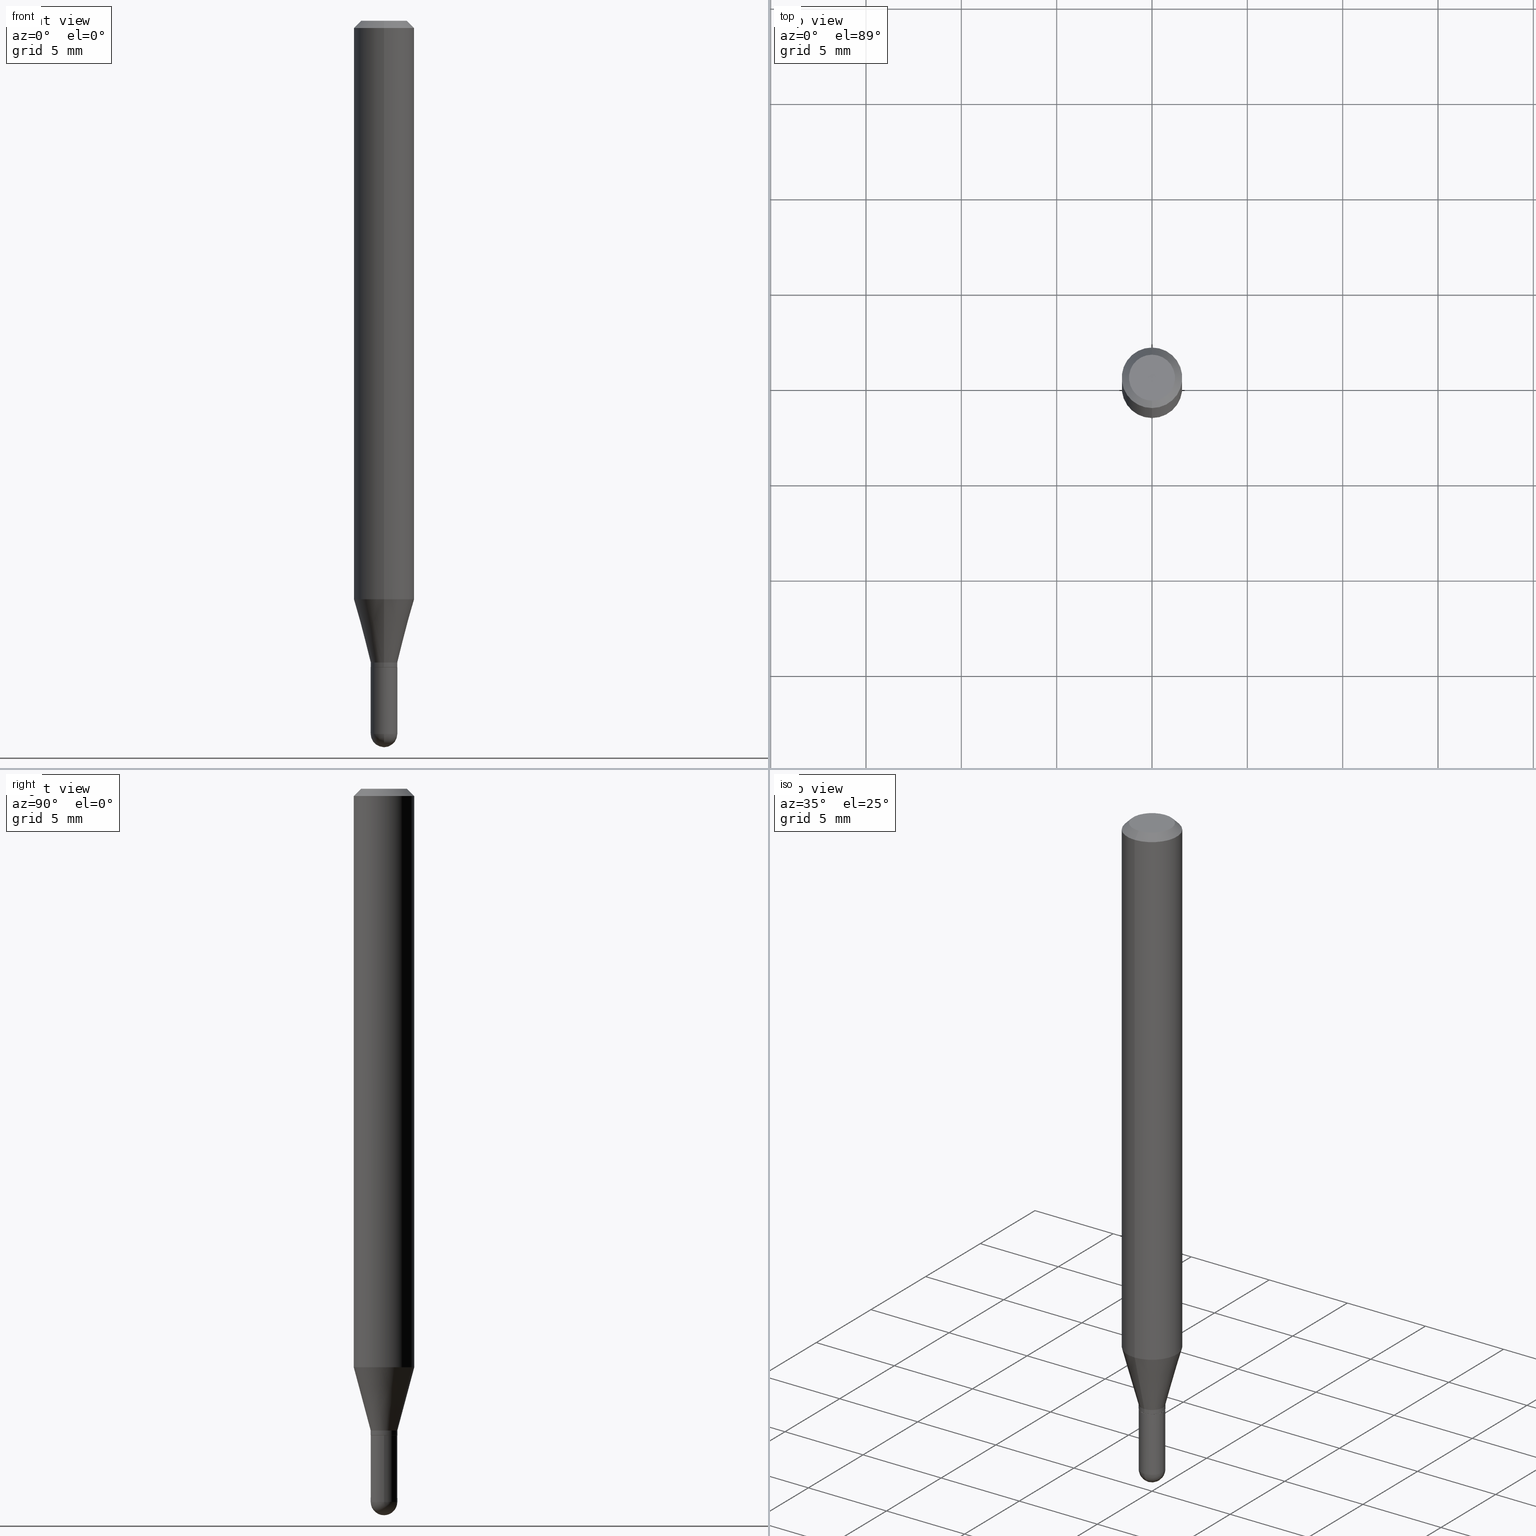
[diagram: canonical four-view strip — front | top / right | iso, engineering-drawing reading convention]
A machine part, canonical four-view strip (front | top / right | iso — engineering-drawing reading convention). The complete STEP part file that produces these views, byte-faithful:
ISO-10303-21;
HEADER;
FILE_DESCRIPTION (( 'STEP AP203' ),
    '1' );
FILE_NAME ('02620.STEP',
    '2024-03-07T20:49:45',
    ( '' ),
    ( '' ),
    'SwSTEP 2.0',
    'SolidWorks 2023',
    '' );
FILE_SCHEMA (( 'CONFIG_CONTROL_DESIGN' ));
ENDSEC;

DATA;
#1 = ADVANCED_FACE ( 'NONE', ( #332 ), #294, .T. ) ;
#2 = ORIENTED_EDGE ( 'NONE', *, *, #459, .T. ) ;
#3 = PERSON_AND_ORGANIZATION_ROLE ( 'creator' ) ;
#4 = DIRECTION ( 'NONE',  ( 6.982962677686265922E-15, 1.000000000000000000, -3.491477318471451219E-15 ) ) ;
#5 = AXIS2_PLACEMENT_3D ( 'NONE', #184, #151, #292 ) ;
#6 = ORIENTED_EDGE ( 'NONE', *, *, #380, .F. ) ;
#7 = COORDINATED_UNIVERSAL_TIME_OFFSET ( 5, 0, .BEHIND. ) ;
#8 = FACE_OUTER_BOUND ( 'NONE', #358, .T. ) ;
#9 = ORIENTED_EDGE ( 'NONE', *, *, #59, .T. ) ;
#10 = ADVANCED_FACE ( 'NONE', ( #109 ), #32, .T. ) ;
#11 = EDGE_CURVE ( 'NONE', #209, #200, #354, .T. ) ;
#12 = DIRECTION ( 'NONE',  ( -2.445471613595686060E-29, 3.491477318471450825E-15, 1.000000000000000000 ) ) ;
#13 = VERTEX_POINT ( 'NONE', #336 ) ;
#14 = CARTESIAN_POINT ( 'NONE',  ( 3.240249888014285312E-29, -4.626207446974673812E-15, -1.325000000000000400 ) ) ;
#15 = CC_DESIGN_PERSON_AND_ORGANIZATION_ASSIGNMENT ( #38, #201, ( #30 ) ) ;
#16 = ORIENTED_EDGE ( 'NONE', *, *, #431, .T. ) ;
#17 = VECTOR ( 'NONE', #160, 39.37007874015748143 ) ;
#18 = CARTESIAN_POINT ( 'NONE',  ( 0.000000000000000000, 0.000000000000000000, 0.000000000000000000 ) ) ;
#19 = CARTESIAN_POINT ( 'NONE',  ( 0.000000000000000000, 0.000000000000000000, 0.000000000000000000 ) ) ;
#20 = FACE_OUTER_BOUND ( 'NONE', #72, .T. ) ;
#21 = CIRCLE ( 'NONE', #27, 0.02750000000000000708 ) ;
#22 = CYLINDRICAL_SURFACE ( 'NONE', #316, 0.06250000000000000000 ) ;
#23 = PLANE ( 'NONE',  #54 ) ;
#24 = DIRECTION ( 'NONE',  ( -2.445471613595686060E-29, 3.491477318471450825E-15, 1.000000000000000000 ) ) ;
#25 = VERTEX_POINT ( 'NONE', #369 ) ;
#26 = DIRECTION ( 'NONE',  ( -1.000000000000000000, 6.982962677686265922E-15, -4.876176775795935793E-29 ) ) ;
#27 = AXIS2_PLACEMENT_3D ( 'NONE', #163, #389, #238 ) ;
#28 = EDGE_LOOP ( 'NONE', ( #428, #50, #276, #351 ) ) ;
#29 = CIRCLE ( 'NONE', #53, 0.02750000000000010075 ) ;
#30 = PRODUCT_DEFINITION_FORMATION_WITH_SPECIFIED_SOURCE ( 'ANY', '', #448, .NOT_KNOWN. ) ;
#31 = DIRECTION ( 'NONE',  ( 1.839019923739605048E-15, 0.2588190451025256245, 0.9659258262890669799 ) ) ;
#32 = SPHERICAL_SURFACE ( 'NONE', #382, 0.02750000000000010075 ) ;
#33 = EDGE_CURVE ( 'NONE', #454, #197, #267, .T. ) ;
#34 = DIRECTION ( 'NONE',  ( -2.445468806185136597E-29, 3.491481338843145583E-15, 1.000000000000000000 ) ) ;
#35 = APPROVAL_DATE_TIME ( #158, #230 ) ;
#36 = ORIENTED_EDGE ( 'NONE', *, *, #417, .F. ) ;
#37 = AXIS2_PLACEMENT_3D ( 'NONE', #253, #321, #98 ) ;
#38 = PERSON_AND_ORGANIZATION ( #365, #323 ) ;
#39 = CARTESIAN_POINT ( 'NONE',  ( 0.000000000000000000, 0.000000000000000000, 0.000000000000000000 ) ) ;
#40 = PERSON_AND_ORGANIZATION ( #365, #323 ) ;
#41 = LINE ( 'NONE', #120, #115 ) ;
#42 = ORIENTED_EDGE ( 'NONE', *, *, #410, .T. ) ;
#43 = APPLICATION_PROTOCOL_DEFINITION ( 'international standard', 'config_control_design', 1994, #359 ) ;
#44 = CARTESIAN_POINT ( 'NONE',  ( 3.316907271900976096E-16, 0.04749999999999999362, -3.299187419673015324E-16 ) ) ;
#45 = AXIS2_PLACEMENT_3D ( 'NONE', #465, #85, #206 ) ;
#46 = ORIENTED_EDGE ( 'NONE', *, *, #76, .T. ) ;
#47 = CIRCLE ( 'NONE', #279, 0.02750000000000000708 ) ;
#48 = EDGE_CURVE ( 'NONE', #463, #242, #21, .T. ) ;
#49 = LINE ( 'NONE', #51, #285 ) ;
#50 = ORIENTED_EDGE ( 'NONE', *, *, #60, .T. ) ;
#51 = CARTESIAN_POINT ( 'NONE',  ( -1.920314736363393602E-16, -0.02750000000000454858, -1.325000000000000400 ) ) ;
#52 = CARTESIAN_POINT ( 'NONE',  ( -1.920314736363717528E-16, -0.02749999999999992034, 9.601562625796461469E-17 ) ) ;
#53 = AXIS2_PLACEMENT_3D ( 'NONE', #395, #88, #269 ) ;
#54 = AXIS2_PLACEMENT_3D ( 'NONE', #226, #183, #26 ) ;
#55 = DIRECTION ( 'NONE',  ( 4.937700262164548042E-15, 0.7071067811865451302, -0.7071067811865499042 ) ) ;
#56 = ADVANCED_FACE ( 'NONE', ( #8 ), #329, .T. ) ;
#57 = CARTESIAN_POINT ( 'NONE',  ( -1.885399922974965256E-16, -0.02700000000000466263, -1.335000000000000187 ) ) ;
#58 = DIRECTION ( 'NONE',  ( -2.445468806185136597E-29, 3.491481338843145583E-15, 1.000000000000000000 ) ) ;
#59 = EDGE_CURVE ( 'NONE', #313, #203, #90, .T. ) ;
#60 = EDGE_CURVE ( 'NONE', #127, #209, #29, .T. ) ;
#61 = ADVANCED_FACE ( 'NONE', ( #272 ), #301, .T. ) ;
#62 = AXIS2_PLACEMENT_3D ( 'NONE', #275, #385, #168 ) ;
#63 = DIRECTION ( 'NONE',  ( -6.982962677686265922E-15, -1.000000000000000000, 0.000000000000000000 ) ) ;
#64 = CC_DESIGN_APPROVAL ( #483, ( #415 ) ) ;
#65 = CC_DESIGN_DATE_AND_TIME_ASSIGNMENT ( #474, #233, ( #415 ) ) ;
#66 = DIRECTION ( 'NONE',  ( 1.000000000000000000, -6.982962677686265922E-15, 4.883557194083112901E-29 ) ) ;
#67 = DIRECTION ( 'NONE',  ( -2.445468806185136597E-29, 3.491481338843145583E-15, 1.000000000000000000 ) ) ;
#68 = EDGE_LOOP ( 'NONE', ( #393, #133, #263, #239 ) ) ;
#69 = DIRECTION ( 'NONE',  ( -2.445471613595686060E-29, 3.491477318471450825E-15, 1.000000000000000000 ) ) ;
#70 = ORIENTED_EDGE ( 'NONE', *, *, #397, .T. ) ;
#71 = DIRECTION ( 'NONE',  ( 1.000000000000000000, -6.982962677686277755E-15, 0.000000000000000000 ) ) ;
#72 = EDGE_LOOP ( 'NONE', ( #456, #493, #399, #36 ) ) ;
#73 = CC_DESIGN_PERSON_AND_ORGANIZATION_ASSIGNMENT ( #420, #3, ( #170 ) ) ;
#74 = SECURITY_CLASSIFICATION_LEVEL ( 'unclassified' ) ;
#75 = ORIENTED_EDGE ( 'NONE', *, *, #397, .F. ) ;
#76 = EDGE_CURVE ( 'NONE', #454, #344, #41, .T. ) ;
#77 = CARTESIAN_POINT ( 'NONE',  ( 0.000000000000000000, 0.000000000000000000, 0.000000000000000000 ) ) ;
#78 = CLOSED_SHELL ( 'NONE', ( #61, #1, #477, #10, #349 ) ) ;
#79 = AXIS2_PLACEMENT_3D ( 'NONE', #443, #355, #246 ) ;
#80 = LOCAL_TIME ( 15, 49, 45.00000000000000000, #81 ) ;
#81 = COORDINATED_UNIVERSAL_TIME_OFFSET ( 5, 0, .BEHIND. ) ;
#82 = DIRECTION ( 'NONE',  ( -2.445471613595686060E-29, 3.491477318471450825E-15, 1.000000000000000000 ) ) ;
#83 = EDGE_LOOP ( 'NONE', ( #94, #154, #86, #176 ) ) ;
#84 = DIRECTION ( 'NONE',  ( 1.000000000000000000, 0.000000000000000000, 0.000000000000000000 ) ) ;
#85 = DIRECTION ( 'NONE',  ( 2.445471613595686060E-29, -3.491477318471450825E-15, -1.000000000000000000 ) ) ;
#86 = ORIENTED_EDGE ( 'NONE', *, *, #479, .F. ) ;
#87 = DATE_TIME_ROLE ( 'creation_date' ) ;
#88 = DIRECTION ( 'NONE',  ( -1.000000000000000000, 6.982962677686265922E-15, -4.883557194083112340E-29 ) ) ;
#89 = EDGE_CURVE ( 'NONE', #197, #454, #156, .T. ) ;
#90 = CIRCLE ( 'NONE', #507, 0.04749999999999999362 ) ;
#91 = ORIENTED_EDGE ( 'NONE', *, *, #48, .T. ) ;
#92 =( GEOMETRIC_REPRESENTATION_CONTEXT ( 3 ) GLOBAL_UNCERTAINTY_ASSIGNED_CONTEXT ( ( #400 ) ) GLOBAL_UNIT_ASSIGNED_CONTEXT ( ( #260, #499, #455 ) ) REPRESENTATION_CONTEXT ( 'NONE', 'WORKASPACE' ) );
#93 = DIRECTION ( 'NONE',  ( 5.024295867788190974E-15, 0.7071067811865681119, 0.7071067811865270336 ) ) ;
#94 = ORIENTED_EDGE ( 'NONE', *, *, #60, .F. ) ;
#95 = FACE_OUTER_BOUND ( 'NONE', #506, .T. ) ;
#96 = VERTEX_POINT ( 'NONE', #478 ) ;
#97 = EDGE_CURVE ( 'NONE', #371, #273, #49, .T. ) ;
#98 = DIRECTION ( 'NONE',  ( -6.982962677686265133E-15, -1.000000000000000000, 0.000000000000000000 ) ) ;
#99 = CONICAL_SURFACE ( 'NONE', #37, 0.02699999999999999969, 0.7853981633974739252 ) ;
#100 = CIRCLE ( 'NONE', #317, 0.02699999999999999969 ) ;
#101 = LOCAL_TIME ( 15, 49, 45.00000000000000000, #300 ) ;
#102 = DIRECTION ( 'NONE',  ( -4.851104656540964275E-15, -0.7071067811865500152, -0.7071067811865450192 ) ) ;
#103 = CARTESIAN_POINT ( 'NONE',  ( -0.02750000000000000708, 1.953992523340276014E-16, -1.352707149820099356E-30 ) ) ;
#104 = ADVANCED_FACE ( 'NONE', ( #475 ), #265, .T. ) ;
#105 = DIRECTION ( 'NONE',  ( -2.445471613595686060E-29, 3.491477318471450825E-15, 1.000000000000000000 ) ) ;
#106 = CLOSED_SHELL ( 'NONE', ( #130, #212, #174, #104, #357, #186, #333, #362, #112, #491, #56, #341 ) ) ;
#107 = AXIS2_PLACEMENT_3D ( 'NONE', #191, #69, #63 ) ;
#108 = CARTESIAN_POINT ( 'NONE',  ( 3.264704604150241307E-29, -4.661122220159386873E-15, -1.335000000000000187 ) ) ;
#109 = FACE_OUTER_BOUND ( 'NONE', #28, .T. ) ;
#110 = DIRECTION ( 'NONE',  ( -2.445471613595686060E-29, 3.491477318471450825E-15, 1.000000000000000000 ) ) ;
#111 = VERTEX_POINT ( 'NONE', #131 ) ;
#112 = ADVANCED_FACE ( 'NONE', ( #243 ), #202, .F. ) ;
#113 = ORIENTED_EDGE ( 'NONE', *, *, #97, .F. ) ;
#114 = CARTESIAN_POINT ( 'NONE',  ( 3.264704604150241307E-29, -4.661122220159386873E-15, -1.335000000000000187 ) ) ;
#115 = VECTOR ( 'NONE', #234, 39.37007874015748143 ) ;
#116 = DIRECTION ( 'NONE',  ( 1.000000000000000000, -6.982962677686265922E-15, 4.883557194083112901E-29 ) ) ;
#117 = LOCAL_TIME ( 15, 49, 45.00000000000000000, #386 ) ;
#118 = ORIENTED_EDGE ( 'NONE', *, *, #440, .F. ) ;
#119 = DATE_AND_TIME ( #426, #117 ) ;
#120 = CARTESIAN_POINT ( 'NONE',  ( 1.953992523340269605E-16, 0.02749999999999992034, -9.601562625796461469E-17 ) ) ;
#121 = CALENDAR_DATE ( 2024, 7, 3 ) ;
#122 = CARTESIAN_POINT ( 'NONE',  ( 3.598601109812370247E-29, -5.144574050144187163E-15, -1.472500000000000142 ) ) ;
#123 = AXIS2_PLACEMENT_3D ( 'NONE', #44, #387, #4 ) ;
#124 = ORIENTED_EDGE ( 'NONE', *, *, #33, .F. ) ;
#125 = MECHANICAL_CONTEXT ( 'NONE', #152, 'mechanical' ) ;
#126 = LINE ( 'NONE', #438, #255 ) ;
#127 = VERTEX_POINT ( 'NONE', #308 ) ;
#128 = APPLICATION_PROTOCOL_DEFINITION ( 'international standard', 'config_control_design', 1994, #152 ) ;
#129 = DIRECTION ( 'NONE',  ( -6.982962677686265922E-15, -1.000000000000000000, 3.491477318471450825E-15 ) ) ;
#130 = ADVANCED_FACE ( 'NONE', ( #210 ), #350, .T. ) ;
#131 = CARTESIAN_POINT ( 'NONE',  ( -0.02750000000000000014, -4.705767677067038393E-15, -1.335000000000000187 ) ) ;
#132 = CIRCLE ( 'NONE', #79, 0.02750000000000000014 ) ;
#133 = ORIENTED_EDGE ( 'NONE', *, *, #380, .T. ) ;
#134 = CIRCLE ( 'NONE', #497, 0.02699999999999999969 ) ;
#135 = CARTESIAN_POINT ( 'NONE',  ( -3.773273898774340269E-16, -0.04749999999999999362, -1.623019660524213164E-16 ) ) ;
#136 = ORIENTED_EDGE ( 'NONE', *, *, #440, .T. ) ;
#137 = EDGE_CURVE ( 'NONE', #200, #214, #512, .T. ) ;
#138 = DIRECTION ( 'NONE',  ( 2.445471613595686060E-29, -3.491477318471450825E-15, -1.000000000000000000 ) ) ;
#139 = DIRECTION ( 'NONE',  ( -2.445471613595686060E-29, 3.491477318471450825E-15, 1.000000000000000000 ) ) ;
#140 = EDGE_LOOP ( 'NONE', ( #9, #2 ) ) ;
#141 = EDGE_CURVE ( 'NONE', #484, #96, #340, .T. ) ;
#142 = CARTESIAN_POINT ( 'NONE',  ( -0.02750000000000000708, -4.705767677067038393E-15, -1.472500000000000142 ) ) ;
#143 = CYLINDRICAL_SURFACE ( 'NONE', #496, 0.02750000000000000708 ) ;
#144 = CARTESIAN_POINT ( 'NONE',  ( 3.264704604150241307E-29, -4.661122220159386873E-15, -1.335000000000000187 ) ) ;
#145 = EDGE_LOOP ( 'NONE', ( #257, #296, #346, #473 ) ) ;
#146 = AXIS2_PLACEMENT_3D ( 'NONE', #122, #510, #430 ) ;
#147 = DIRECTION ( 'NONE',  ( -2.445471613595686060E-29, 3.491477318471450825E-15, 1.000000000000000000 ) ) ;
#148 = AXIS2_PLACEMENT_3D ( 'NONE', #262, #24, #490 ) ;
#149 = DIRECTION ( 'NONE',  ( -2.445471613595686060E-29, 3.491477318471450825E-15, 1.000000000000000000 ) ) ;
#150 = EDGE_CURVE ( 'NONE', #450, #454, #126, .T. ) ;
#151 = DIRECTION ( 'NONE',  ( -2.445471613595686060E-29, 3.491477318471450825E-15, 1.000000000000000000 ) ) ;
#152 = APPLICATION_CONTEXT ( 'configuration controlled 3d designs of mechanical parts and assemblies' ) ;
#153 = DIRECTION ( 'NONE',  ( -2.445471613595686060E-29, 3.491477318471450825E-15, 1.000000000000000000 ) ) ;
#154 = ORIENTED_EDGE ( 'NONE', *, *, #167, .T. ) ;
#155 = CARTESIAN_POINT ( 'NONE',  ( 1.953992523340593531E-16, 0.02749999999999529210, -1.325000000000000400 ) ) ;
#156 = CIRCLE ( 'NONE', #241, 0.02749999999999992381 ) ;
#157 = EDGE_LOOP ( 'NONE', ( #172, #46, #227, #390 ) ) ;
#158 = DATE_AND_TIME ( #121, #80 ) ;
#159 = FACE_OUTER_BOUND ( 'NONE', #68, .T. ) ;
#160 = DIRECTION ( 'NONE',  ( -2.445468806185136877E-29, 3.491481338843145188E-15, 1.000000000000000000 ) ) ;
#161 = EDGE_LOOP ( 'NONE', ( #91, #299, #259, #421, #290 ) ) ;
#162 = PERSON_AND_ORGANIZATION ( #365, #323 ) ;
#163 = CARTESIAN_POINT ( 'NONE',  ( 3.600952817107613706E-29, -5.141206271446532325E-15, -1.472500000000000142 ) ) ;
#164 = CONICAL_SURFACE ( 'NONE', #481, 0.02749999999999992034, 0.2617993877991509621 ) ;
#165 = EDGE_LOOP ( 'NONE', ( #476, #353, #376, #185, #492 ) ) ;
#166 = CALENDAR_DATE ( 2024, 7, 3 ) ;
#167 = EDGE_CURVE ( 'NONE', #127, #463, #402, .T. ) ;
#168 = DIRECTION ( 'NONE',  ( -6.982962677686265133E-15, -1.000000000000000000, 0.000000000000000000 ) ) ;
#169 = ORIENTED_EDGE ( 'NONE', *, *, #501, .T. ) ;
#170 = PRODUCT_DEFINITION ( 'UNKNOWN', '', #30, #383 ) ;
#171 = DIRECTION ( 'NONE',  ( -2.445471613595686060E-29, 3.491477318471450825E-15, 1.000000000000000000 ) ) ;
#172 = ORIENTED_EDGE ( 'NONE', *, *, #89, .T. ) ;
#173 = DIRECTION ( 'NONE',  ( -6.982962677686265922E-15, -1.000000000000000000, 4.370956789862821150E-15 ) ) ;
#174 = ADVANCED_FACE ( 'NONE', ( #159 ), #175, .T. ) ;
#175 = CONICAL_SURFACE ( 'NONE', #45, 0.06250000000000000000, 0.7853981633974483900 ) ;
#176 = ORIENTED_EDGE ( 'NONE', *, *, #11, .F. ) ;
#177 = AXIS2_PLACEMENT_3D ( 'NONE', #306, #422, #84 ) ;
#178 = CARTESIAN_POINT ( 'NONE',  ( -4.364351673553916201E-16, -0.06250000000000000000, 2.182173324044656766E-16 ) ) ;
#179 = DIRECTION ( 'NONE',  ( -2.445471613595686060E-29, 3.491477318471450825E-15, 1.000000000000000000 ) ) ;
#180 = FACE_OUTER_BOUND ( 'NONE', #500, .T. ) ;
#181 = AXIS2_PLACEMENT_3D ( 'NONE', #77, #304, #345 ) ;
#182 = LINE ( 'NONE', #178, #208 ) ;
#183 = DIRECTION ( 'NONE',  ( 2.438088387897960049E-29, -3.491481338843145188E-15, -1.000000000000000000 ) ) ;
#184 = CARTESIAN_POINT ( 'NONE',  ( 2.920818037150057655E-29, -4.170144470864333140E-15, -1.194378221735090229 ) ) ;
#185 = ORIENTED_EDGE ( 'NONE', *, *, #137, .T. ) ;
#186 = ADVANCED_FACE ( 'NONE', ( #466 ), #461, .T. ) ;
#187 = VECTOR ( 'NONE', #102, 39.37007874015748143 ) ;
#188 = CARTESIAN_POINT ( 'NONE',  ( 3.600952817107613706E-29, -5.141206271446532325E-15, -1.472500000000000142 ) ) ;
#189 = APPROVAL_PERSON_ORGANIZATION ( #266, #230, #347 ) ;
#190 = ORIENTED_EDGE ( 'NONE', *, *, #89, .F. ) ;
#191 = CARTESIAN_POINT ( 'NONE',  ( 3.240249888014285312E-29, -4.626207446974673812E-15, -1.325000000000000400 ) ) ;
#192 = EDGE_CURVE ( 'NONE', #484, #273, #219, .T. ) ;
#193 = EDGE_CURVE ( 'NONE', #197, #371, #287, .T. ) ;
#194 = DIRECTION ( 'NONE',  ( 1.000000000000000000, -6.982962677686277755E-15, 0.000000000000000000 ) ) ;
#195 = APPROVAL_ROLE ( '' ) ;
#196 = AXIS2_PLACEMENT_3D ( 'NONE', #320, #138, #283 ) ;
#197 = VERTEX_POINT ( 'NONE', #401 ) ;
#198 = APPROVAL_DATE_TIME ( #464, #483 ) ;
#199 = CARTESIAN_POINT ( 'NONE',  ( 3.263481868343443170E-29, -4.659376481500151772E-15, -1.334500000000000242 ) ) ;
#200 = VERTEX_POINT ( 'NONE', #361 ) ;
#201 = PERSON_AND_ORGANIZATION_ROLE ( 'design_supplier' ) ;
#202 = PLANE ( 'NONE',  #123 ) ;
#203 = VERTEX_POINT ( 'NONE', #135 ) ;
#204 = MANIFOLD_SOLID_BREP ( 'Body-Move/Copy2[2]', #106 ) ;
#205 = PERSON_AND_ORGANIZATION ( #365, #323 ) ;
#206 = DIRECTION ( 'NONE',  ( 6.982962677686265922E-15, 1.000000000000000000, -3.483106191921935554E-15 ) ) ;
#207 = MANIFOLD_SOLID_BREP ( 'Body-Move/Copy2[1]', #78 ) ;
#208 = VECTOR ( 'NONE', #487, 39.37007874015748143 ) ;
#209 = VERTEX_POINT ( 'NONE', #404 ) ;
#210 = FACE_OUTER_BOUND ( 'NONE', #157, .T. ) ;
#211 = EDGE_LOOP ( 'NONE', ( #318, #396 ) ) ;
#212 = ADVANCED_FACE ( 'NONE', ( #180 ), #99, .T. ) ;
#213 = CARTESIAN_POINT ( 'NONE',  ( 3.264700856257157760E-29, -4.661127587355599122E-15, -1.335000000000000187 ) ) ;
#214 = VERTEX_POINT ( 'NONE', #445 ) ;
#215 = CYLINDRICAL_SURFACE ( 'NONE', #425, 0.02749999999999992034 ) ;
#216 = DIRECTION ( 'NONE',  ( -6.982962677686265922E-15, -1.000000000000000000, 3.491477318471450825E-15 ) ) ;
#217 = FACE_OUTER_BOUND ( 'NONE', #145, .T. ) ;
#218 = CARTESIAN_POINT ( 'NONE',  ( -4.364351673553625802E-16, -0.06250000000000419109, -1.194378221735090007 ) ) ;
#219 = CIRCLE ( 'NONE', #413, 0.06250000000000000000 ) ;
#220 = AXIS2_PLACEMENT_3D ( 'NONE', #258, #416, #71 ) ;
#221 = LINE ( 'NONE', #155, #309 ) ;
#222 = EDGE_CURVE ( 'NONE', #273, #13, #182, .T. ) ;
#223 = CARTESIAN_POINT ( 'NONE',  ( 3.240249888014285312E-29, -4.626207446974673812E-15, -1.325000000000000400 ) ) ;
#224 = ORIENTED_EDGE ( 'NONE', *, *, #302, .T. ) ;
#225 = CIRCLE ( 'NONE', #107, 0.02749999999999992034 ) ;
#226 = CARTESIAN_POINT ( 'NONE',  ( 1.920314736364049589E-16, 0.02749999999999534067, -1.335000000000000187 ) ) ;
#227 = ORIENTED_EDGE ( 'NONE', *, *, #501, .F. ) ;
#228 = DIRECTION ( 'NONE',  ( -6.982962677686265922E-15, -1.000000000000000000, 0.000000000000000000 ) ) ;
#229 = CARTESIAN_POINT ( 'NONE',  ( 3.598601109812370247E-29, -5.144574050144187163E-15, -1.472500000000000142 ) ) ;
#230 = APPROVAL ( #231, 'UNSPECIFIED' ) ;
#231 = APPROVAL_STATUS ( 'not_yet_approved' ) ;
#232 = EDGE_LOOP ( 'NONE', ( #408, #305, #247, #244 ) ) ;
#233 = DATE_TIME_ROLE ( 'classification_date' ) ;
#234 = DIRECTION ( 'NONE',  ( -2.445471613595686060E-29, 3.491477318471451219E-15, 1.000000000000000000 ) ) ;
#235 = PRODUCT_RELATED_PRODUCT_CATEGORY ( 'detail', '', ( #448 ) ) ;
#236 = APPROVAL_STATUS ( 'not_yet_approved' ) ;
#237 = DIRECTION ( 'NONE',  ( -2.445471613595686060E-29, 3.491477318471450825E-15, 1.000000000000000000 ) ) ;
#238 = DIRECTION ( 'NONE',  ( 1.000000000000000000, -6.982962677686277755E-15, 0.000000000000000000 ) ) ;
#239 = ORIENTED_EDGE ( 'NONE', *, *, #302, .F. ) ;
#240 = DIRECTION ( 'NONE',  ( -2.445471613595686060E-29, 3.491477318471450825E-15, 1.000000000000000000 ) ) ;
#241 = AXIS2_PLACEMENT_3D ( 'NONE', #199, #12, #392 ) ;
#242 = VERTEX_POINT ( 'NONE', #142 ) ;
#243 = FACE_OUTER_BOUND ( 'NONE', #140, .T. ) ;
#244 = ORIENTED_EDGE ( 'NONE', *, *, #222, .F. ) ;
#245 = CC_DESIGN_PERSON_AND_ORGANIZATION_ASSIGNMENT ( #271, #429, ( #415 ) ) ;
#246 = DIRECTION ( 'NONE',  ( 1.000000000000000000, -6.982962677686279332E-15, 0.000000000000000000 ) ) ;
#247 = ORIENTED_EDGE ( 'NONE', *, *, #446, .F. ) ;
#248 = LINE ( 'NONE', #103, #364 ) ;
#249 = CIRCLE ( 'NONE', #322, 0.06250000000000000000 ) ;
#250 = LOCAL_TIME ( 15, 49, 45.00000000000000000, #342 ) ;
#251 = LINE ( 'NONE', #57, #469 ) ;
#252 = EDGE_CURVE ( 'NONE', #214, #111, #278, .T. ) ;
#253 = CARTESIAN_POINT ( 'NONE',  ( 3.264704604150241307E-29, -4.661122220159386873E-15, -1.335000000000000187 ) ) ;
#254 = DIRECTION ( 'NONE',  ( -2.445468806185136597E-29, 3.491481338843145583E-15, 1.000000000000000000 ) ) ;
#255 = VECTOR ( 'NONE', #93, 39.37007874015748143 ) ;
#256 = AXIS2_PLACEMENT_3D ( 'NONE', #504, #327, #295 ) ;
#257 = ORIENTED_EDGE ( 'NONE', *, *, #76, .F. ) ;
#258 = CARTESIAN_POINT ( 'NONE',  ( 3.600952817107613706E-29, -5.141206271446532325E-15, -1.472500000000000142 ) ) ;
#259 = ORIENTED_EDGE ( 'NONE', *, *, #252, .F. ) ;
#260 =( CONVERSION_BASED_UNIT ( 'INCH', #449 ) LENGTH_UNIT ( ) NAMED_UNIT ( #414 ) );
#261 = ORIENTED_EDGE ( 'NONE', *, *, #150, .F. ) ;
#262 = CARTESIAN_POINT ( 'NONE',  ( 8.024745127241350600E-45, -1.145718291821880628E-30, -3.281471386798151833E-16 ) ) ;
#263 = ORIENTED_EDGE ( 'NONE', *, *, #446, .T. ) ;
#264 = APPROVAL_ROLE ( '' ) ;
#265 = CYLINDRICAL_SURFACE ( 'NONE', #436, 0.06250000000000000000 ) ;
#266 = PERSON_AND_ORGANIZATION ( #365, #323 ) ;
#267 = CIRCLE ( 'NONE', #467, 0.02749999999999992381 ) ;
#268 = CONICAL_SURFACE ( 'NONE', #196, 0.06250000000000000000, 0.7853981633974483900 ) ;
#269 = DIRECTION ( 'NONE',  ( -6.982962677686265922E-15, -1.000000000000000000, 0.000000000000000000 ) ) ;
#270 = CIRCLE ( 'NONE', #403, 0.02749999999999992034 ) ;
#271 = PERSON_AND_ORGANIZATION ( #365, #323 ) ;
#272 = FACE_OUTER_BOUND ( 'NONE', #161, .T. ) ;
#273 = VERTEX_POINT ( 'NONE', #218 ) ;
#274 = CALENDAR_DATE ( 2024, 7, 3 ) ;
#275 = CARTESIAN_POINT ( 'NONE',  ( 3.264704604150241307E-29, -4.661122220159386873E-15, -1.335000000000000187 ) ) ;
#276 = ORIENTED_EDGE ( 'NONE', *, *, #505, .F. ) ;
#277 = CARTESIAN_POINT ( 'NONE',  ( 0.02750000000000000708, -1.920314736363723691E-16, 1.340948613343882588E-30 ) ) ;
#278 = CIRCLE ( 'NONE', #291, 0.02750000000000000014 ) ;
#279 = AXIS2_PLACEMENT_3D ( 'NONE', #188, #67, #331 ) ;
#280 = CC_DESIGN_PERSON_AND_ORGANIZATION_ASSIGNMENT ( #205, #303, ( #30 ) ) ;
#281 = EDGE_LOOP ( 'NONE', ( #169, #16, #435, #113 ) ) ;
#282 = LINE ( 'NONE', #447, #337 ) ;
#283 = DIRECTION ( 'NONE',  ( 6.982962677686265922E-15, 1.000000000000000000, -3.483106191921935554E-15 ) ) ;
#284 = LINE ( 'NONE', #444, #187 ) ;
#285 = VECTOR ( 'NONE', #312, 39.37007874015748854 ) ;
#286 = DIRECTION ( 'NONE',  ( 1.000000000000000000, -6.982962677686279332E-15, 0.000000000000000000 ) ) ;
#287 = LINE ( 'NONE', #52, #451 ) ;
#288 = EDGE_CURVE ( 'NONE', #242, #111, #248, .T. ) ;
#289 = DIRECTION ( 'NONE',  ( -6.982962677686265922E-15, -1.000000000000000000, 3.491477318471451219E-15 ) ) ;
#290 = ORIENTED_EDGE ( 'NONE', *, *, #479, .T. ) ;
#291 = AXIS2_PLACEMENT_3D ( 'NONE', #213, #58, #286 ) ;
#292 = DIRECTION ( 'NONE',  ( -6.982962677686265922E-15, -1.000000000000000000, 4.370956789862821150E-15 ) ) ;
#293 = DIRECTION ( 'NONE',  ( -6.982962677686265922E-15, -1.000000000000000000, 0.000000000000000000 ) ) ;
#294 = SPHERICAL_SURFACE ( 'NONE', #314, 0.02750000000000010075 ) ;
#295 = DIRECTION ( 'NONE',  ( -6.982962677686265922E-15, -1.000000000000000000, 3.483106191921935554E-15 ) ) ;
#296 = ORIENTED_EDGE ( 'NONE', *, *, #33, .T. ) ;
#297 = AXIS2_PLACEMENT_3D ( 'NONE', #427, #237, #363 ) ;
#298 = DIRECTION ( 'NONE',  ( -6.982962677686265133E-15, -1.000000000000000000, 0.000000000000000000 ) ) ;
#299 = ORIENTED_EDGE ( 'NONE', *, *, #288, .T. ) ;
#300 = COORDINATED_UNIVERSAL_TIME_OFFSET ( 5, 0, .BEHIND. ) ;
#301 = CYLINDRICAL_SURFACE ( 'NONE', #181, 0.02750000000000000708 ) ;
#302 = EDGE_CURVE ( 'NONE', #313, #96, #282, .T. ) ;
#303 = PERSON_AND_ORGANIZATION_ROLE ( 'creator' ) ;
#304 = DIRECTION ( 'NONE',  ( -2.445468806185136597E-29, 3.491481338843145583E-15, 1.000000000000000000 ) ) ;
#305 = ORIENTED_EDGE ( 'NONE', *, *, #141, .T. ) ;
#306 = CARTESIAN_POINT ( 'NONE',  ( 0.000000000000000000, 0.000000000000000000, 0.000000000000000000 ) ) ;
#307 = VECTOR ( 'NONE', #348, 39.37007874015748143 ) ;
#308 = CARTESIAN_POINT ( 'NONE',  ( 3.664675648334840268E-29, -5.242273676311202011E-15, -1.500000000000000444 ) ) ;
#309 = VECTOR ( 'NONE', #31, 39.37007874015748143 ) ;
#310 = EDGE_LOOP ( 'NONE', ( #460, #42, #468, #480 ) ) ;
#311 = CARTESIAN_POINT ( 'NONE',  ( 4.440892098500625669E-16, 0.06250000000000000000, -2.182173324044656766E-16 ) ) ;
#312 = DIRECTION ( 'NONE',  ( -1.807323732225334872E-15, -0.2588190451025188521, 0.9659258262890687563 ) ) ;
#313 = VERTEX_POINT ( 'NONE', #360 ) ;
#314 = AXIS2_PLACEMENT_3D ( 'NONE', #495, #116, #412 ) ;
#315 = DIRECTION ( 'NONE',  ( -2.445468806185136877E-29, 3.491481338843145188E-15, 1.000000000000000000 ) ) ;
#316 = AXIS2_PLACEMENT_3D ( 'NONE', #398, #105, #216 ) ;
#317 = AXIS2_PLACEMENT_3D ( 'NONE', #114, #153, #453 ) ;
#318 = ORIENTED_EDGE ( 'NONE', *, *, #252, .T. ) ;
#319 = DIRECTION ( 'NONE',  ( -6.982962677686265922E-15, -1.000000000000000000, 3.491477318471450825E-15 ) ) ;
#320 = CARTESIAN_POINT ( 'NONE',  ( 3.668207420393609823E-31, -5.237215977707291288E-17, -0.01500000000000032904 ) ) ;
#321 = DIRECTION ( 'NONE',  ( -2.445471613595686060E-29, 3.491477318471450825E-15, 1.000000000000000000 ) ) ;
#322 = AXIS2_PLACEMENT_3D ( 'NONE', #334, #502, #335 ) ;
#323 = ORGANIZATION ( 'UNSPECIFIED', 'UNSPECIFIED', '' ) ;
#324 = EDGE_CURVE ( 'NONE', #111, #214, #132, .T. ) ;
#325 = DIRECTION ( 'NONE',  ( -2.445471613595686060E-29, 3.491477318471450825E-15, 1.000000000000000000 ) ) ;
#326 = CARTESIAN_POINT ( 'NONE',  ( 1.953992523340638644E-16, 0.02749999999999491046, -1.472500000000000142 ) ) ;
#327 = DIRECTION ( 'NONE',  ( -2.445471613595686060E-29, 3.491477318471450825E-15, 1.000000000000000000 ) ) ;
#328 = CARTESIAN_POINT ( 'NONE',  ( 3.263481868343443170E-29, -4.659376481500151772E-15, -1.334500000000000242 ) ) ;
#329 = CONICAL_SURFACE ( 'NONE', #62, 0.02699999999999999969, 0.7853981633974739252 ) ;
#330 = CC_DESIGN_SECURITY_CLASSIFICATION ( #415, ( #30 ) ) ;
#331 = DIRECTION ( 'NONE',  ( 1.000000000000000000, -6.982962677686277755E-15, 0.000000000000000000 ) ) ;
#332 = FACE_OUTER_BOUND ( 'NONE', #83, .T. ) ;
#333 = ADVANCED_FACE ( 'NONE', ( #20 ), #22, .T. ) ;
#334 = CARTESIAN_POINT ( 'NONE',  ( 3.668207420393609823E-31, -5.237215977707291288E-17, -0.01500000000000032904 ) ) ;
#335 = DIRECTION ( 'NONE',  ( -6.982962677686265922E-15, -1.000000000000000000, 3.483106191921935554E-15 ) ) ;
#336 = CARTESIAN_POINT ( 'NONE',  ( -4.364351673553912750E-16, -0.06250000000000005551, -0.01500000000000011047 ) ) ;
#337 = VECTOR ( 'NONE', #55, 39.37007874015748143 ) ;
#338 = ADVANCED_BREP_SHAPE_REPRESENTATION ( '02620', ( #207, #204, #177 ), #92 ) ;
#339 = APPROVAL_STATUS ( 'not_yet_approved' ) ;
#340 = LINE ( 'NONE', #311, #307 ) ;
#341 = ADVANCED_FACE ( 'NONE', ( #217 ), #215, .T. ) ;
#342 = COORDINATED_UNIVERSAL_TIME_OFFSET ( 5, 0, .BEHIND. ) ;
#343 = CARTESIAN_POINT ( 'NONE',  ( 0.000000000000000000, 0.000000000000000000, 0.000000000000000000 ) ) ;
#344 = VERTEX_POINT ( 'NONE', #485 ) ;
#345 = DIRECTION ( 'NONE',  ( 1.000000000000000000, -6.982962677686265922E-15, 4.876176775795935232E-29 ) ) ;
#346 = ORIENTED_EDGE ( 'NONE', *, *, #193, .T. ) ;
#347 = APPROVAL_ROLE ( '' ) ;
#348 = DIRECTION ( 'NONE',  ( -2.445471613595686060E-29, 3.491477318471451219E-15, 1.000000000000000000 ) ) ;
#349 = ADVANCED_FACE ( 'NONE', ( #489 ), #143, .T. ) ;
#350 = CYLINDRICAL_SURFACE ( 'NONE', #373, 0.02749999999999992034 ) ;
#351 = ORIENTED_EDGE ( 'NONE', *, *, #48, .F. ) ;
#352 = FACE_OUTER_BOUND ( 'NONE', #281, .T. ) ;
#353 = ORIENTED_EDGE ( 'NONE', *, *, #505, .T. ) ;
#354 = CIRCLE ( 'NONE', #424, 0.02750000000000000708 ) ;
#355 = DIRECTION ( 'NONE',  ( -2.445468806185136597E-29, 3.491481338843145583E-15, 1.000000000000000000 ) ) ;
#356 = CC_DESIGN_APPROVAL ( #498, ( #30 ) ) ;
#357 = ADVANCED_FACE ( 'NONE', ( #352 ), #164, .T. ) ;
#358 = EDGE_LOOP ( 'NONE', ( #261, #136, #70, #124 ) ) ;
#359 = APPLICATION_CONTEXT ( 'configuration controlled 3d designs of mechanical parts and assemblies' ) ;
#360 = CARTESIAN_POINT ( 'NONE',  ( 3.840629472727447874E-16, 0.04749999999999999362, -4.939923113072091241E-16 ) ) ;
#361 = CARTESIAN_POINT ( 'NONE',  ( 0.02750000000000000708, -5.093198403037438216E-15, -1.472500000000000142 ) ) ;
#362 = ADVANCED_FACE ( 'NONE', ( #95 ), #268, .T. ) ;
#363 = DIRECTION ( 'NONE',  ( -6.982962677686265922E-15, -1.000000000000000000, 0.000000000000000000 ) ) ;
#364 = VECTOR ( 'NONE', #315, 39.37007874015748143 ) ;
#365 = PERSON ( 'UNSPECIFIED', 'UNSPECIFIED', 'UNSPECIFIED', ('UNSPECIFIED'), ('UNSPECIFIED'), ('UNSPECIFIED') ) ;
#366 = APPROVAL_PERSON_ORGANIZATION ( #40, #498, #195 ) ;
#367 = PRODUCT_DEFINITION_SHAPE ( 'NONE', 'NONE',  #170 ) ;
#368 = FACE_OUTER_BOUND ( 'NONE', #211, .T. ) ;
#369 = CARTESIAN_POINT ( 'NONE',  ( -1.885399922974965256E-16, -0.02700000000000466263, -1.335000000000000187 ) ) ;
#370 = PLANE ( 'NONE',  #488 ) ;
#371 = VERTEX_POINT ( 'NONE', #486 ) ;
#372 = CC_DESIGN_PERSON_AND_ORGANIZATION_ASSIGNMENT ( #162, #388, ( #448 ) ) ;
#373 = AXIS2_PLACEMENT_3D ( 'NONE', #343, #171, #129 ) ;
#374 = LOCAL_TIME ( 15, 49, 45.00000000000000000, #7 ) ;
#375 = CARTESIAN_POINT ( 'NONE',  ( 1.936228954946596434E-16, 0.02699999999999533676, -1.335000000000000187 ) ) ;
#376 = ORIENTED_EDGE ( 'NONE', *, *, #11, .T. ) ;
#377 =( LENGTH_UNIT ( ) NAMED_UNIT ( * ) SI_UNIT ( $, .METRE. ) );
#378 = CARTESIAN_POINT ( 'NONE',  ( 3.600952817107613706E-29, -5.141206271446532325E-15, -1.472500000000000142 ) ) ;
#379 = PERSON_AND_ORGANIZATION ( #365, #323 ) ;
#380 = EDGE_CURVE ( 'NONE', #203, #13, #284, .T. ) ;
#381 = DIRECTION ( 'NONE',  ( -6.982962677686265922E-15, -1.000000000000000000, 0.000000000000000000 ) ) ;
#382 = AXIS2_PLACEMENT_3D ( 'NONE', #229, #66, #381 ) ;
#383 = DESIGN_CONTEXT ( 'detailed design', #359, 'design' ) ;
#384 = CIRCLE ( 'NONE', #148, 0.04749999999999999362 ) ;
#385 = DIRECTION ( 'NONE',  ( -2.445471613595686060E-29, 3.491477318471450825E-15, 1.000000000000000000 ) ) ;
#386 = COORDINATED_UNIVERSAL_TIME_OFFSET ( 5, 0, .BEHIND. ) ;
#387 = DIRECTION ( 'NONE',  ( 2.445471613595685500E-29, -3.491477318471451219E-15, -1.000000000000000000 ) ) ;
#388 = PERSON_AND_ORGANIZATION_ROLE ( 'design_owner' ) ;
#389 = DIRECTION ( 'NONE',  ( -2.445468806185136597E-29, 3.491481338843145583E-15, 1.000000000000000000 ) ) ;
#390 = ORIENTED_EDGE ( 'NONE', *, *, #193, .F. ) ;
#391 = CIRCLE ( 'NONE', #5, 0.06250000000000000000 ) ;
#392 = DIRECTION ( 'NONE',  ( -6.982962677686265922E-15, -1.000000000000000000, 0.000000000000000000 ) ) ;
#393 = ORIENTED_EDGE ( 'NONE', *, *, #459, .F. ) ;
#394 = CC_DESIGN_DATE_AND_TIME_ASSIGNMENT ( #433, #87, ( #170 ) ) ;
#395 = CARTESIAN_POINT ( 'NONE',  ( 3.598601109812370247E-29, -5.144574050144187163E-15, -1.472500000000000142 ) ) ;
#396 = ORIENTED_EDGE ( 'NONE', *, *, #324, .T. ) ;
#397 = EDGE_CURVE ( 'NONE', #25, #197, #251, .T. ) ;
#398 = CARTESIAN_POINT ( 'NONE',  ( 0.000000000000000000, 0.000000000000000000, 0.000000000000000000 ) ) ;
#399 = ORIENTED_EDGE ( 'NONE', *, *, #222, .T. ) ;
#400 = UNCERTAINTY_MEASURE_WITH_UNIT (LENGTH_MEASURE( 1.000000000000000082E-05 ), #260, 'distance_accuracy_value', 'NONE');
#401 = CARTESIAN_POINT ( 'NONE',  ( -1.920314736363398285E-16, -0.02750000000000468042, -1.334500000000000242 ) ) ;
#402 = CIRCLE ( 'NONE', #146, 0.02750000000000010075 ) ;
#403 = AXIS2_PLACEMENT_3D ( 'NONE', #223, #147, #228 ) ;
#404 = CARTESIAN_POINT ( 'NONE',  ( -1.920314736363366977E-16, -0.02750000000000519737, -1.472500000000000142 ) ) ;
#405 = CARTESIAN_POINT ( 'NONE',  ( 2.920818037150057655E-29, -4.170144470864333140E-15, -1.194378221735090229 ) ) ;
#406 = DIRECTION ( 'NONE',  ( 1.000000000000000000, -6.982962677686265922E-15, 4.876176775795935232E-29 ) ) ;
#407 = DIRECTION ( 'NONE',  ( -4.937700262164674260E-15, -0.7071067811865632269, 0.7071067811865319186 ) ) ;
#408 = ORIENTED_EDGE ( 'NONE', *, *, #419, .T. ) ;
#409 = FACE_OUTER_BOUND ( 'NONE', #432, .T. ) ;
#410 = EDGE_CURVE ( 'NONE', #344, #371, #225, .T. ) ;
#411 = ORIENTED_EDGE ( 'NONE', *, *, #150, .T. ) ;
#412 = DIRECTION ( 'NONE',  ( -6.982962677686265922E-15, -1.000000000000000000, 0.000000000000000000 ) ) ;
#413 = AXIS2_PLACEMENT_3D ( 'NONE', #405, #139, #173 ) ;
#414 = DIMENSIONAL_EXPONENTS ( 1.000000000000000000, 0.000000000000000000, 0.000000000000000000, 0.000000000000000000, 0.000000000000000000, 0.000000000000000000, 0.000000000000000000 ) ;
#415 = SECURITY_CLASSIFICATION ( '', '', #74 ) ;
#416 = DIRECTION ( 'NONE',  ( -2.445468806185136597E-29, 3.491481338843145583E-15, 1.000000000000000000 ) ) ;
#417 = EDGE_CURVE ( 'NONE', #96, #13, #249, .T. ) ;
#418 = ORIENTED_EDGE ( 'NONE', *, *, #59, .F. ) ;
#419 = EDGE_CURVE ( 'NONE', #273, #484, #391, .T. ) ;
#420 = PERSON_AND_ORGANIZATION ( #365, #323 ) ;
#421 = ORIENTED_EDGE ( 'NONE', *, *, #137, .F. ) ;
#422 = DIRECTION ( 'NONE',  ( 0.000000000000000000, 0.000000000000000000, 1.000000000000000000 ) ) ;
#423 = DIRECTION ( 'NONE',  ( -6.982962677686266711E-15, -1.000000000000000000, 3.491477318471450825E-15 ) ) ;
#424 = AXIS2_PLACEMENT_3D ( 'NONE', #378, #34, #194 ) ;
#425 = AXIS2_PLACEMENT_3D ( 'NONE', #18, #325, #319 ) ;
#426 = CALENDAR_DATE ( 2024, 7, 3 ) ;
#427 = CARTESIAN_POINT ( 'NONE',  ( 3.240249888014285312E-29, -4.626207446974673812E-15, -1.325000000000000400 ) ) ;
#428 = ORIENTED_EDGE ( 'NONE', *, *, #167, .F. ) ;
#429 = PERSON_AND_ORGANIZATION_ROLE ( 'classification_officer' ) ;
#430 = DIRECTION ( 'NONE',  ( 7.105427357601000281E-15, 1.000000000000000000, 0.000000000000000000 ) ) ;
#431 = EDGE_CURVE ( 'NONE', #344, #484, #221, .T. ) ;
#432 = EDGE_LOOP ( 'NONE', ( #442, #118 ) ) ;
#433 = DATE_AND_TIME ( #274, #250 ) ;
#434 = CARTESIAN_POINT ( 'NONE',  ( 8.024745127241350600E-45, -1.145718291821880628E-30, -3.281471386798151833E-16 ) ) ;
#435 = ORIENTED_EDGE ( 'NONE', *, *, #419, .F. ) ;
#436 = AXIS2_PLACEMENT_3D ( 'NONE', #39, #82, #472 ) ;
#437 = CIRCLE ( 'NONE', #220, 0.02750000000000000708 ) ;
#438 = CARTESIAN_POINT ( 'NONE',  ( 1.918465386552596625E-16, 0.02699999999999533676, -1.335000000000000187 ) ) ;
#439 = ORIENTED_EDGE ( 'NONE', *, *, #417, .T. ) ;
#440 = EDGE_CURVE ( 'NONE', #450, #25, #100, .T. ) ;
#441 = DIRECTION ( 'NONE',  ( -6.982962677686265922E-15, -1.000000000000000000, 0.000000000000000000 ) ) ;
#442 = ORIENTED_EDGE ( 'NONE', *, *, #457, .F. ) ;
#443 = CARTESIAN_POINT ( 'NONE',  ( 3.264700856257157760E-29, -4.661127587355599122E-15, -1.335000000000000187 ) ) ;
#444 = CARTESIAN_POINT ( 'NONE',  ( -4.287811248607203282E-16, -0.06250000000000005551, -0.01500000000000011047 ) ) ;
#445 = CARTESIAN_POINT ( 'NONE',  ( 0.02750000000000000014, -4.853159060991972403E-15, -1.335000000000000187 ) ) ;
#446 = EDGE_CURVE ( 'NONE', #13, #96, #470, .T. ) ;
#447 = CARTESIAN_POINT ( 'NONE',  ( 4.364351673553919652E-16, 0.06249999999999995143, -0.01500000000000054588 ) ) ;
#448 = PRODUCT ( '02620', '02620', '', ( #125 ) ) ;
#449 = LENGTH_MEASURE_WITH_UNIT ( LENGTH_MEASURE( 0.02539999999999999897 ), #377 );
#450 = VERTEX_POINT ( 'NONE', #375 ) ;
#451 = VECTOR ( 'NONE', #482, 39.37007874015748143 ) ;
#452 = CC_DESIGN_APPROVAL ( #230, ( #170 ) ) ;
#453 = DIRECTION ( 'NONE',  ( -6.982962677686265133E-15, -1.000000000000000000, 0.000000000000000000 ) ) ;
#454 = VERTEX_POINT ( 'NONE', #458 ) ;
#455 =( NAMED_UNIT ( * ) SI_UNIT ( $, .STERADIAN. ) SOLID_ANGLE_UNIT ( ) );
#456 = ORIENTED_EDGE ( 'NONE', *, *, #141, .F. ) ;
#457 = EDGE_CURVE ( 'NONE', #25, #450, #134, .T. ) ;
#458 = CARTESIAN_POINT ( 'NONE',  ( 1.953992523340589093E-16, 0.02749999999999517067, -1.334500000000000242 ) ) ;
#459 = EDGE_CURVE ( 'NONE', #203, #313, #384, .T. ) ;
#460 = ORIENTED_EDGE ( 'NONE', *, *, #431, .F. ) ;
#461 = CONICAL_SURFACE ( 'NONE', #297, 0.02749999999999992034, 0.2617993877991509621 ) ;
#462 = DIRECTION ( 'NONE',  ( -2.445471613595685500E-29, 3.491477318471451219E-15, 1.000000000000000000 ) ) ;
#463 = VERTEX_POINT ( 'NONE', #326 ) ;
#464 = DATE_AND_TIME ( #509, #101 ) ;
#465 = CARTESIAN_POINT ( 'NONE',  ( 3.668207420393609823E-31, -5.237215977707291288E-17, -0.01500000000000032904 ) ) ;
#466 = FACE_OUTER_BOUND ( 'NONE', #310, .T. ) ;
#467 = AXIS2_PLACEMENT_3D ( 'NONE', #328, #149, #293 ) ;
#468 = ORIENTED_EDGE ( 'NONE', *, *, #97, .T. ) ;
#469 = VECTOR ( 'NONE', #407, 39.37007874015748143 ) ;
#470 = CIRCLE ( 'NONE', #256, 0.06250000000000000000 ) ;
#471 = APPROVAL_DATE_TIME ( #119, #498 ) ;
#472 = DIRECTION ( 'NONE',  ( -6.982962677686265922E-15, -1.000000000000000000, 3.491477318471450825E-15 ) ) ;
#473 = ORIENTED_EDGE ( 'NONE', *, *, #410, .F. ) ;
#474 = DATE_AND_TIME ( #166, #374 ) ;
#475 = FACE_OUTER_BOUND ( 'NONE', #232, .T. ) ;
#476 = ORIENTED_EDGE ( 'NONE', *, *, #288, .F. ) ;
#477 = ADVANCED_FACE ( 'NONE', ( #368 ), #23, .F. ) ;
#478 = CARTESIAN_POINT ( 'NONE',  ( 4.440892098500920012E-16, 0.06249999999999995143, -0.01500000000000054588 ) ) ;
#479 = EDGE_CURVE ( 'NONE', #200, #463, #437, .T. ) ;
#480 = ORIENTED_EDGE ( 'NONE', *, *, #192, .F. ) ;
#481 = AXIS2_PLACEMENT_3D ( 'NONE', #14, #179, #441 ) ;
#482 = DIRECTION ( 'NONE',  ( -2.445471613595686060E-29, 3.491477318471451219E-15, 1.000000000000000000 ) ) ;
#483 = APPROVAL ( #339, 'UNSPECIFIED' ) ;
#484 = VERTEX_POINT ( 'NONE', #494 ) ;
#485 = CARTESIAN_POINT ( 'NONE',  ( 3.197442310920756402E-16, 0.02749999999999529210, -1.325000000000000400 ) ) ;
#486 = CARTESIAN_POINT ( 'NONE',  ( -1.920314736363393602E-16, -0.02750000000000454858, -1.325000000000000400 ) ) ;
#487 = DIRECTION ( 'NONE',  ( -2.445471613595686060E-29, 3.491477318471451219E-15, 1.000000000000000000 ) ) ;
#488 = AXIS2_PLACEMENT_3D ( 'NONE', #144, #462, #289 ) ;
#489 = FACE_OUTER_BOUND ( 'NONE', #165, .T. ) ;
#490 = DIRECTION ( 'NONE',  ( -6.982962677686266711E-15, -1.000000000000000000, 3.491477318471450825E-15 ) ) ;
#491 = ADVANCED_FACE ( 'NONE', ( #409 ), #370, .F. ) ;
#492 = ORIENTED_EDGE ( 'NONE', *, *, #324, .F. ) ;
#493 = ORIENTED_EDGE ( 'NONE', *, *, #192, .T. ) ;
#494 = CARTESIAN_POINT ( 'NONE',  ( 4.440892098500915082E-16, 0.06249999999999580891, -1.194378221735090451 ) ) ;
#495 = CARTESIAN_POINT ( 'NONE',  ( 3.598601109812370247E-29, -5.144574050144187163E-15, -1.472500000000000142 ) ) ;
#496 = AXIS2_PLACEMENT_3D ( 'NONE', #19, #254, #406 ) ;
#497 = AXIS2_PLACEMENT_3D ( 'NONE', #108, #110, #298 ) ;
#498 = APPROVAL ( #236, 'UNSPECIFIED' ) ;
#499 =( NAMED_UNIT ( * ) PLANE_ANGLE_UNIT ( ) SI_UNIT ( $, .RADIAN. ) );
#500 = EDGE_LOOP ( 'NONE', ( #503, #411, #190, #75 ) ) ;
#501 = EDGE_CURVE ( 'NONE', #371, #344, #270, .T. ) ;
#502 = DIRECTION ( 'NONE',  ( -2.445471613595686060E-29, 3.491477318471450825E-15, 1.000000000000000000 ) ) ;
#503 = ORIENTED_EDGE ( 'NONE', *, *, #457, .T. ) ;
#504 = CARTESIAN_POINT ( 'NONE',  ( 3.668207420393609823E-31, -5.237215977707291288E-17, -0.01500000000000032904 ) ) ;
#505 = EDGE_CURVE ( 'NONE', #242, #209, #47, .T. ) ;
#506 = EDGE_LOOP ( 'NONE', ( #6, #418, #224, #439 ) ) ;
#507 = AXIS2_PLACEMENT_3D ( 'NONE', #434, #240, #423 ) ;
#508 = APPROVAL_PERSON_ORGANIZATION ( #379, #483, #264 ) ;
#509 = CALENDAR_DATE ( 2024, 7, 3 ) ;
#510 = DIRECTION ( 'NONE',  ( 1.000000000000000000, -7.105427357601001070E-15, 4.926315508542082329E-29 ) ) ;
#511 = SHAPE_DEFINITION_REPRESENTATION ( #367, #338 ) ;
#512 = LINE ( 'NONE', #277, #17 ) ;
ENDSEC;
END-ISO-10303-21;
